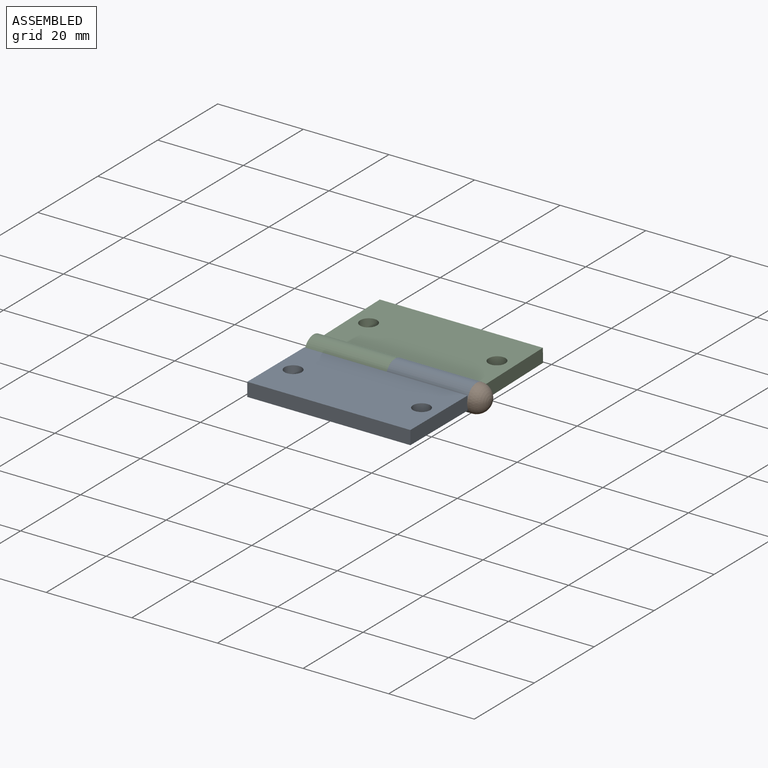
[diagram: assembled view]
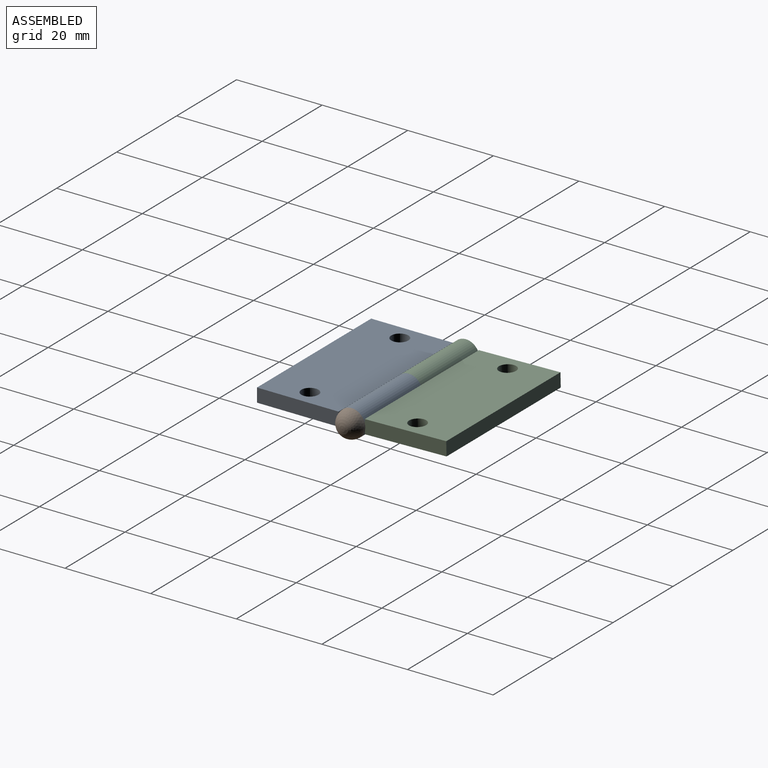
[diagram: assembled view, second angle]
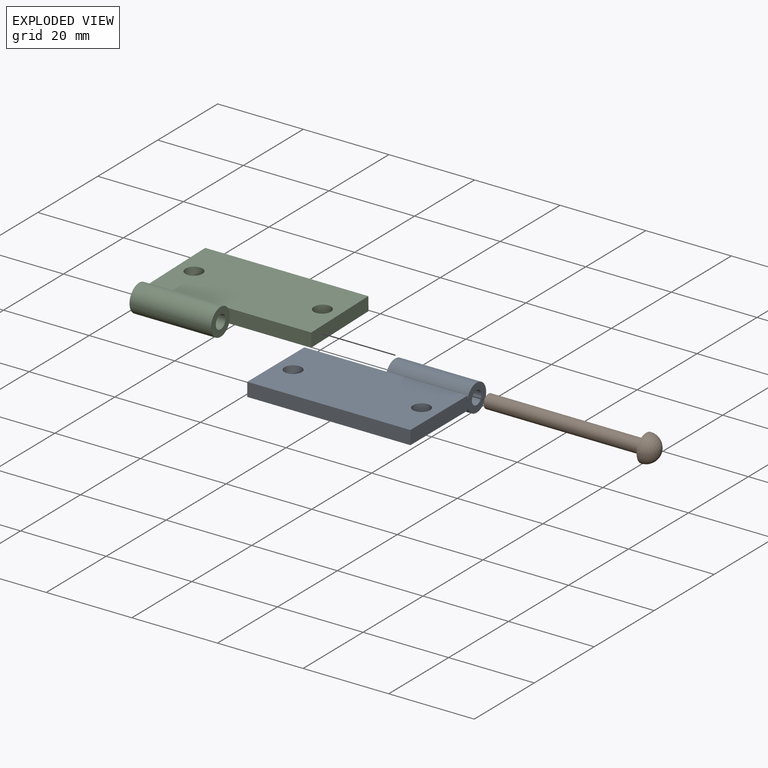
[diagram: exploded view]
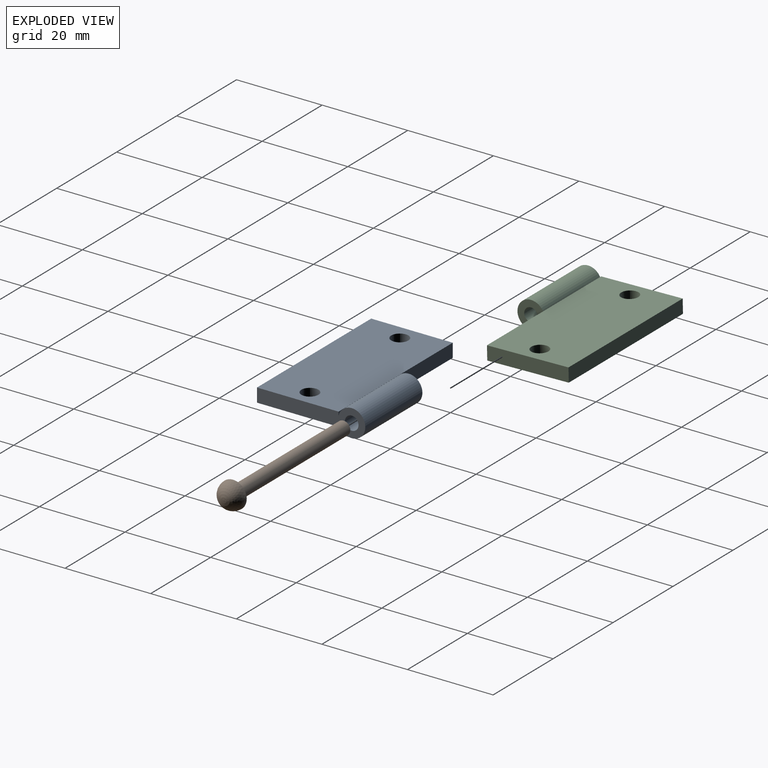
[diagram: exploded view, second angle]
ASSEMBLY  parts=3 mates=4
PART A: 11 faces, bbox 38.1x25.3x6.4 mm
  f0: plane 38.1x3.2mm, normal (0,1,0), area 91.8mm2, adj f1,f2,f6,f7,f8,f9
  f1: plane 25.3x6.35mm, normal (1,0,0), area 84.6mm2, adj f0,f4,f6,f7,f8,f10
  f2: plane 19.05x3.2mm, normal (-1,0,0), area 61mm2, adj f0,f4,f6,f7
  f3: cylinder r=2mm len=4mm, axis (0,0,-1), area 40.2mm2, adj f6,f7
  f4: plane 38.1x3.2mm, normal (0,-1,0), area 121.9mm2, adj f1,f2,f6,f7
  f5: cylinder r=2mm len=4mm, axis (0,0,-1), area 40.2mm2, adj f6,f7
  f6: plane 38.1x19.05mm, normal (0,0,1), area 700.7mm2, adj f0,f1,f2,f3,f4,f5
  f7: plane 38.1x19.05mm, normal (0,0,-1), area 700.7mm2, adj f0,f1,f2,f3,f4,f5
  f8: cylinder r=3.17mm len=19.05mm, axis (-1,0,0), area 349.6mm2, adj f0,f1,f9
  f9: plane 6.35x6.25mm, normal (-1,0,0), area 23.6mm2, adj f0,f8,f10
  f10: cylinder r=1.59mm len=19.05mm, axis (-1,0,0), area 190mm2, adj f1,f9
PART B: 4 faces, bbox 6.4x6.4x40 mm
  f0: plane 3.18x3.18mm, normal (0,0,-1), area 7.9mm2, adj f3
  f1: sphere r=3.17mm, area 63.3mm2, adj f2
  f2: plane 6.35x6.35mm, normal (0,0,-1), area 23.8mm2, adj f1,f3
  f3: cylinder r=1.59mm len=36.83mm, axis (0,0,-1), area 367.3mm2, adj f0,f2
PART C: same geometry as A
PLACE A t=(2.87,39.7,-14.03)mm fixed
PLACE B rot(axis=(-0.58,0.58,-0.58),120deg) t=(-14.9,52.3,-12.44)mm
PLACE C rot(axis=(0,-0.01,1),180deg) t=(2.87,64.93,-13.76)mm
MATE planar B.f3 <-> A.f1  axis (-1,0,0) through (21.92,52.3,-12.44)mm
MATE cylindrical C.f8 <-> A.f8  axis (1,0,0) through (-6.65,52.3,-12.44)mm
MATE planar A.f8 <-> C.f8  axis (-1,0,0) through (2.87,52.3,-12.44)mm
MATE cylindrical B.f3 <-> A.f8  axis (-1,0,0) through (21.92,52.3,-12.44)mm
